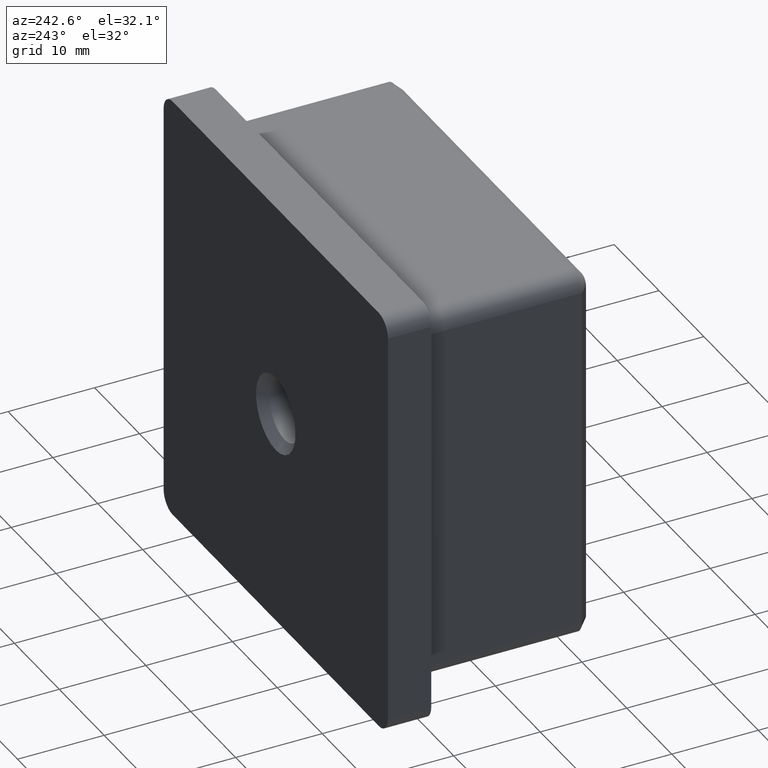
[diagram: clean part render]
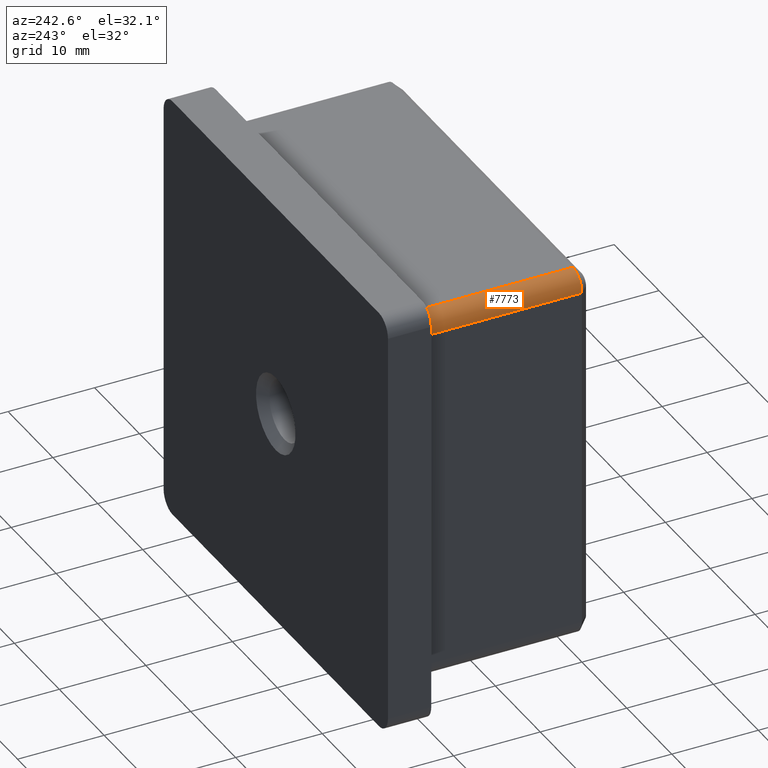
[diagram: same view with one face highlighted and labeled with its STEP entity id]
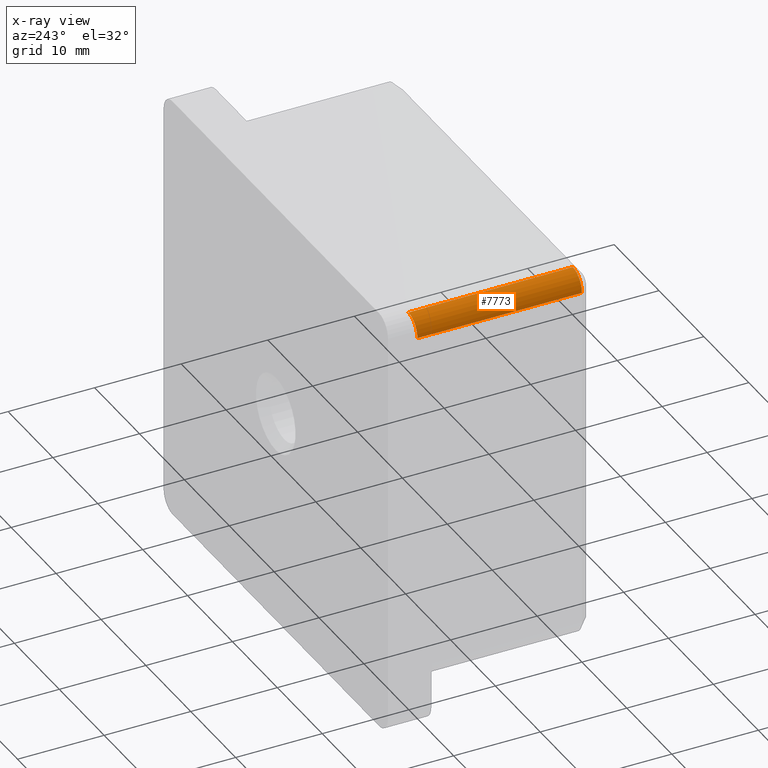
[diagram: x-ray of the same camera — body ghosted, the highlighted face saturated]
A machine part, auxiliary view. The second image highlights one B-rep face of the part: STEP entity #7773.
The next image is the same camera in x-ray: the body ghosted, the highlighted face saturated — about 0% of this face is hidden behind the body in this view.
In plain terms, the highlighted cylindrical surface (edge-blend (fillet) strip) has radius 2 mm, axis along (-0, 1, 0).
Its self-contained STEP definition (entity closure, byte-faithful):
#167 = VECTOR ( 'NONE', #10860, 1000.000000000000000 ) ;
#1628 = DIRECTION ( 'NONE',  ( 0.0000000000000000000, 1.000000000000000000, 0.0000000000000000000 ) ) ;
#2062 = LINE ( 'NONE', #6586, #4352 ) ;
#2518 = EDGE_CURVE ( 'NONE', #8301, #17696, #7984, .T. ) ;
#3326 = EDGE_LOOP ( 'NONE', ( #11160, #9154, #17973, #12099 ) ) ;
#3898 = EDGE_CURVE ( 'NONE', #17696, #11849, #12959, .T. ) ;
#4331 = CARTESIAN_POINT ( 'NONE',  ( -19.90000000000000200, 0.0000000000000000000, 19.90000000000000200 ) ) ;
#4352 = VECTOR ( 'NONE', #12800, 1000.000000000000000 ) ;
#5075 = CARTESIAN_POINT ( 'NONE',  ( -19.90000000000000200, -18.99999999999998600, 19.90000000000000200 ) ) ;
#6441 = CIRCLE ( 'NONE', #15500, 2.000000000000001800 ) ;
#6586 = CARTESIAN_POINT ( 'NONE',  ( -19.90000000000000200, -20.00000000000000000, 21.90000000000000200 ) ) ;
#7021 = DIRECTION ( 'NONE',  ( -0.0000000000000000000, 1.000000000000000000, 0.0000000000000000000 ) ) ;
#7498 = DIRECTION ( 'NONE',  ( 0.0000000000000000000, 0.0000000000000000000, 1.000000000000000000 ) ) ;
#7773 = ADVANCED_FACE ( 'NONE', ( #14724 ), #16475, .T. ) ;
#7984 = LINE ( 'NONE', #15589, #167 ) ;
#8301 = VERTEX_POINT ( 'NONE', #13327 ) ;
#9154 = ORIENTED_EDGE ( 'NONE', *, *, #16080, .T. ) ;
#10684 = AXIS2_PLACEMENT_3D ( 'NONE', #4331, #13916, #7498 ) ;
#10860 = DIRECTION ( 'NONE',  ( -0.0000000000000000000, 1.000000000000000000, 0.0000000000000000000 ) ) ;
#11160 = ORIENTED_EDGE ( 'NONE', *, *, #2518, .F. ) ;
#11760 = DIRECTION ( 'NONE',  ( 0.0000000000000000000, 0.0000000000000000000, 1.000000000000000000 ) ) ;
#11849 = VERTEX_POINT ( 'NONE', #15303 ) ;
#12099 = ORIENTED_EDGE ( 'NONE', *, *, #3898, .F. ) ;
#12518 = AXIS2_PLACEMENT_3D ( 'NONE', #15098, #7021, #11760 ) ;
#12800 = DIRECTION ( 'NONE',  ( -0.0000000000000000000, -1.000000000000000000, -0.0000000000000000000 ) ) ;
#12848 = DIRECTION ( 'NONE',  ( 0.0000000000000000000, 0.0000000000000000000, -1.000000000000000000 ) ) ;
#12959 = CIRCLE ( 'NONE', #10684, 2.000000000000001800 ) ;
#13327 = CARTESIAN_POINT ( 'NONE',  ( -21.90000000000000200, -18.99999999999998600, 19.90000000000000200 ) ) ;
#13488 = CARTESIAN_POINT ( 'NONE',  ( -21.90000000000000200, 0.0000000000000000000, 19.90000000000000200 ) ) ;
#13916 = DIRECTION ( 'NONE',  ( 0.0000000000000000000, 1.000000000000000000, 0.0000000000000000000 ) ) ;
#14346 = EDGE_CURVE ( 'NONE', #11849, #18135, #2062, .T. ) ;
#14724 = FACE_OUTER_BOUND ( 'NONE', #3326, .T. ) ;
#15098 = CARTESIAN_POINT ( 'NONE',  ( -19.90000000000000200, -20.00000000000000000, 19.90000000000000200 ) ) ;
#15303 = CARTESIAN_POINT ( 'NONE',  ( -19.90000000000000200, 0.0000000000000000000, 21.90000000000000200 ) ) ;
#15500 = AXIS2_PLACEMENT_3D ( 'NONE', #5075, #1628, #12848 ) ;
#15589 = CARTESIAN_POINT ( 'NONE',  ( -21.90000000000000200, -20.00000000000000000, 19.90000000000000200 ) ) ;
#16080 = EDGE_CURVE ( 'NONE', #8301, #18135, #6441, .T. ) ;
#16475 = CYLINDRICAL_SURFACE ( 'NONE', #12518, 2.000000000000001800 ) ;
#16996 = CARTESIAN_POINT ( 'NONE',  ( -19.90000000000000200, -18.99999999999998600, 21.90000000000000200 ) ) ;
#17696 = VERTEX_POINT ( 'NONE', #13488 ) ;
#17973 = ORIENTED_EDGE ( 'NONE', *, *, #14346, .F. ) ;
#18135 = VERTEX_POINT ( 'NONE', #16996 ) ;